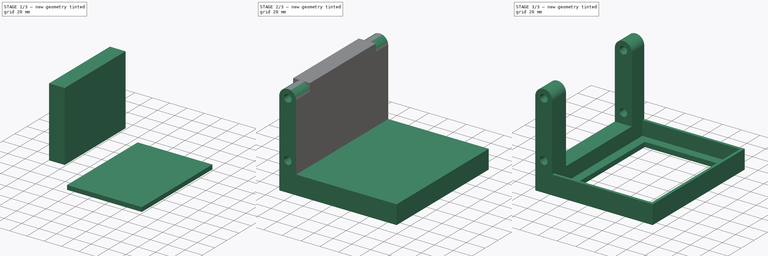
[diagram: build sequence overview — one tinted view per stage of 3, left to right]
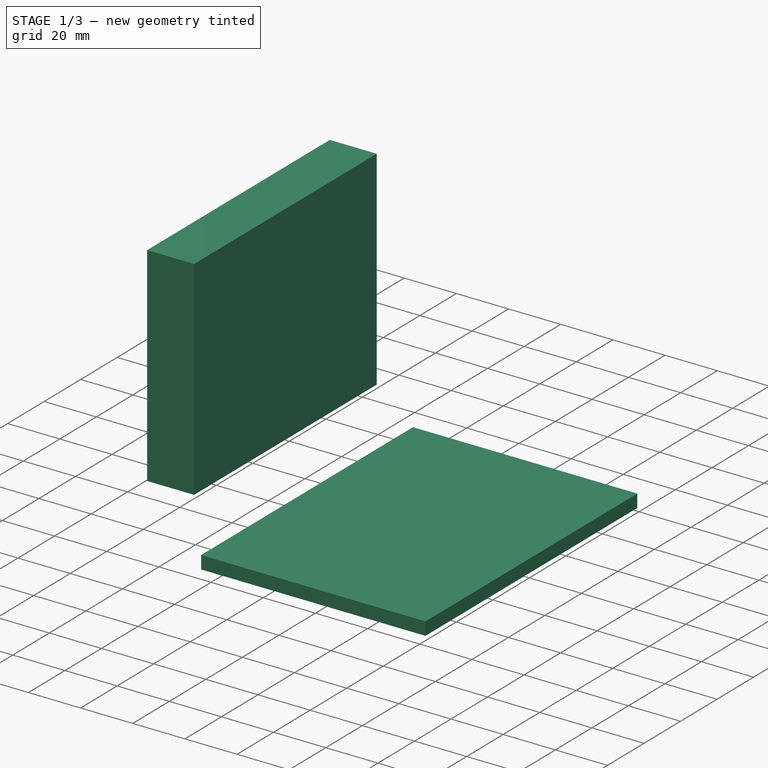
[diagram: stage 1 of 3 — iso view after this stage's code; geometry added in this stage tinted green]
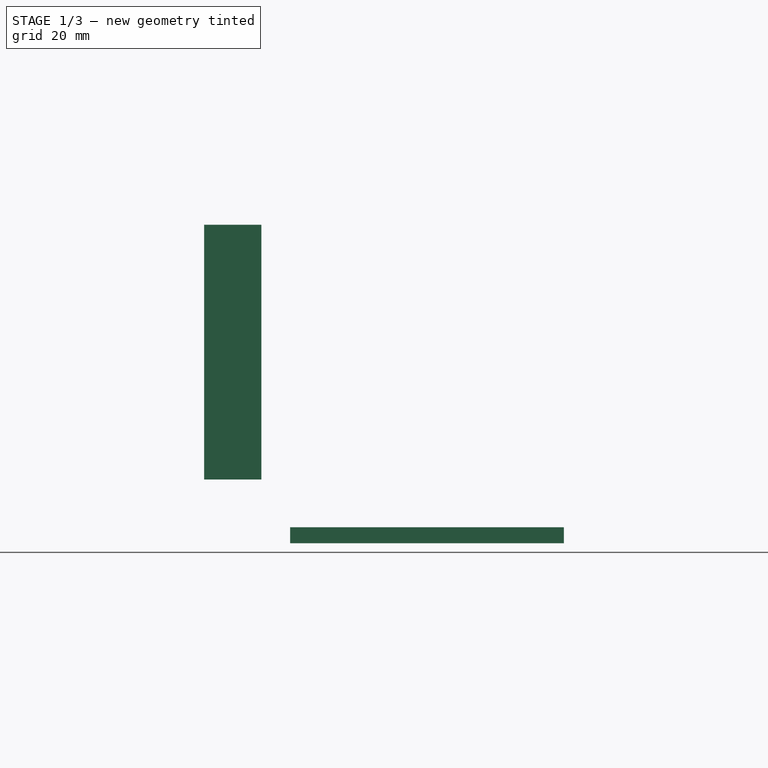
[diagram: stage 1 of 3 — front view after this stage's code; geometry added in this stage tinted green]
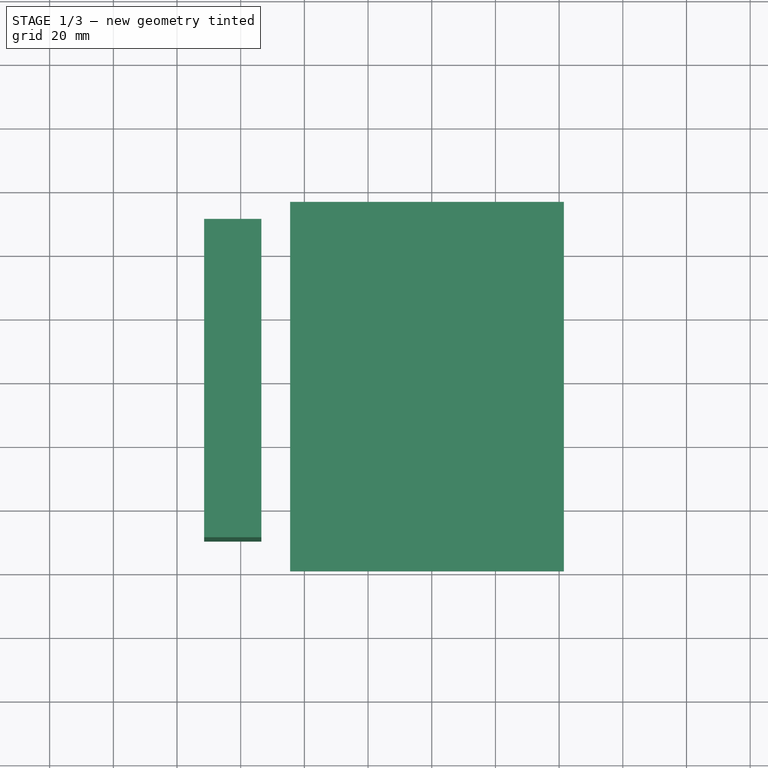
[diagram: stage 1 of 3 — top view after this stage's code; geometry added in this stage tinted green]
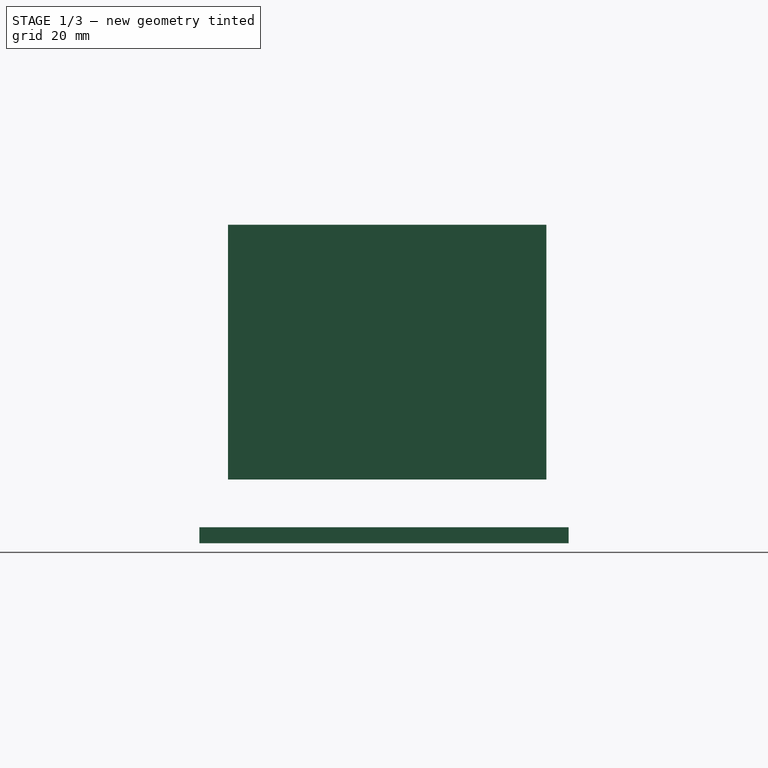
[diagram: stage 1 of 3 — right view after this stage's code; geometry added in this stage tinted green]
FCSTD DOCUMENT  (FreeCAD 0.16R6710 (Git))
Label: board_shelf
License: All rights reserved
LicenseURL: http://en.wikipedia.org/wiki/All_rights_reserved
objects: Sketcher::SketchObject×3, PartDesign::Pad×3, Part::Cut×2, Part::MultiFuse×1, Part::Box×1
note: 13 computed .brp shape members not serialized (recipe doc carries the construction recipe); baked Part::Feature solids carry a one-line shape summary decoded from their .brp

FEATURE [PartDesign::Pad] Pad002  label="BaseHole"
  Length = 5
  Length2 = 100
  Placement = pos=(0,0,5) rot=(0,0,1;0rad)
  Reversed = true
  Sketch = -> Sketch002
  Type = 0
FEATURE [Part::Box] Box  label="Cube"
  Height = 80
  Length = 18
  Placement = pos=(-91.5,-50,20) rot=(0,0,1;0rad)
  Width = 100
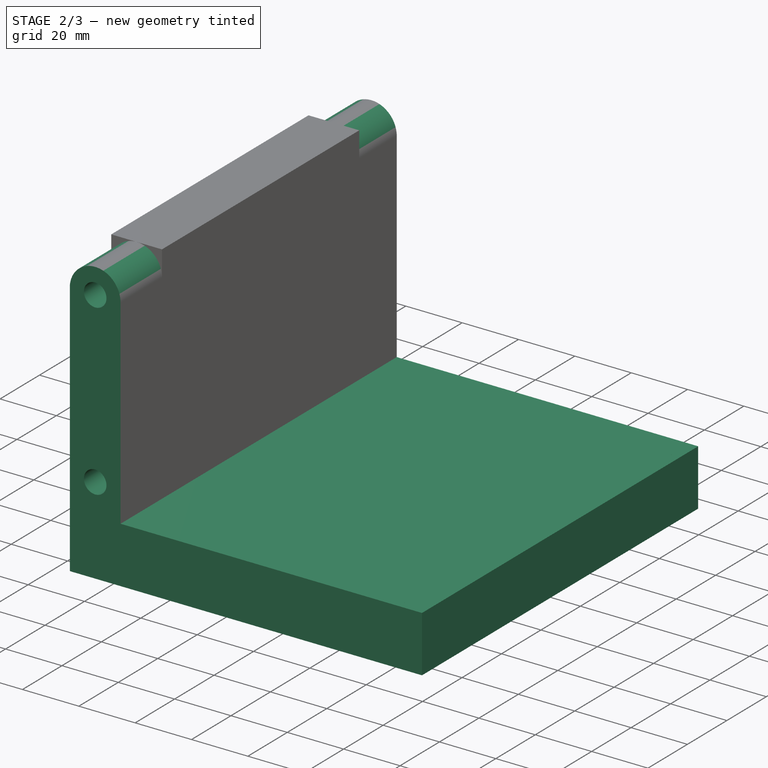
[diagram: stage 2 of 3 — iso view after this stage's code; geometry added in this stage tinted green]
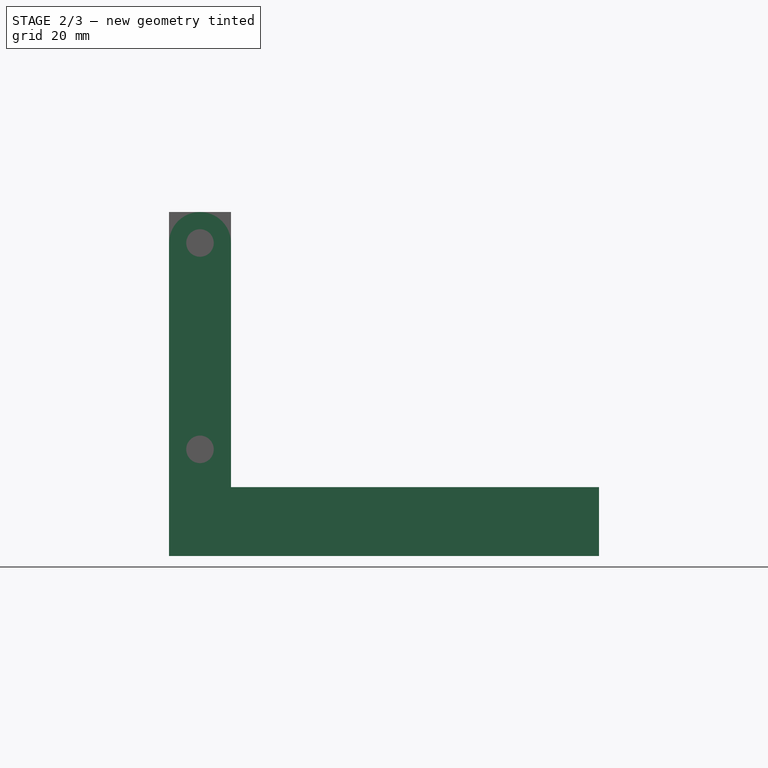
[diagram: stage 2 of 3 — front view after this stage's code; geometry added in this stage tinted green]
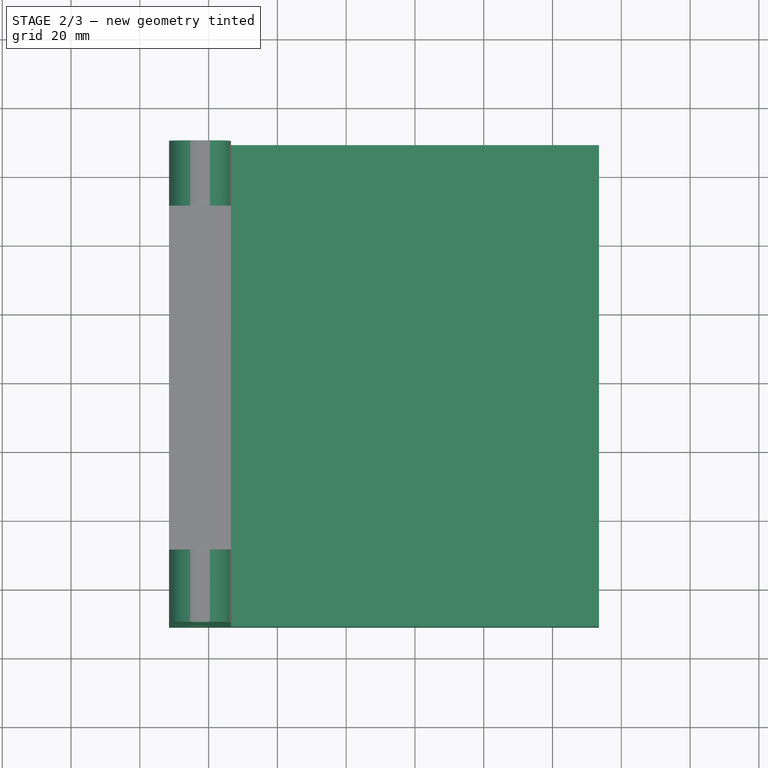
[diagram: stage 2 of 3 — top view after this stage's code; geometry added in this stage tinted green]
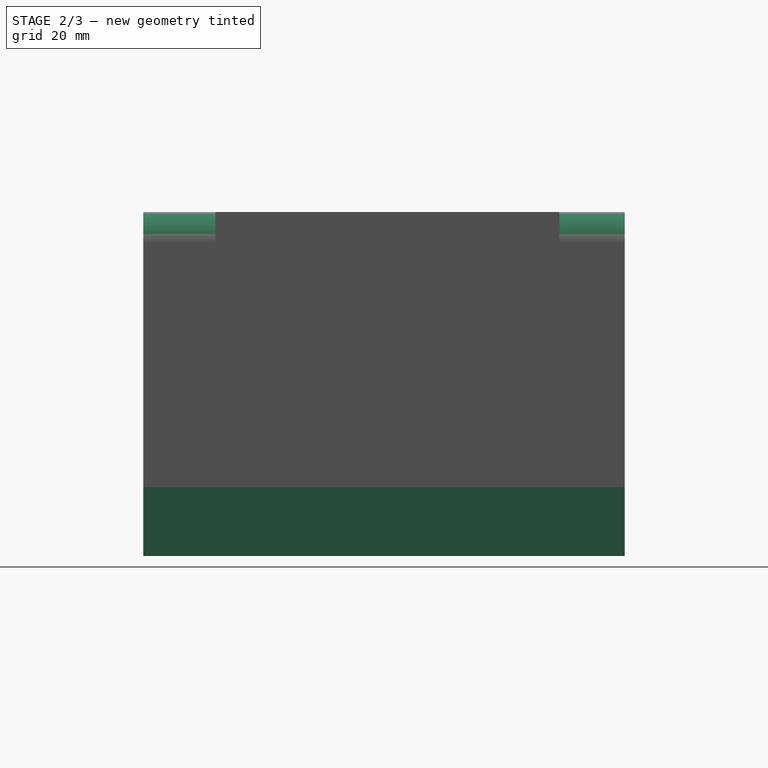
[diagram: stage 2 of 3 — right view after this stage's code; geometry added in this stage tinted green]
FEATURE [Sketcher::SketchObject] Sketch
  Placement = pos=(0,-71,20) rot=(1,0,0;1.5708rad)
  sketch-geometry (8):
    g0: LineSegment StartX=-91.5 StartY=-20 StartZ=0 EndX=-91.5 EndY=71 EndZ=0
    g1: LineSegment StartX=-91.5 StartY=-20 StartZ=0 EndX=33.5 EndY=-20 EndZ=0
    g2: LineSegment StartX=33.5 StartY=-20 StartZ=0 EndX=33.5 EndY=0 EndZ=0
    g3: LineSegment StartX=33.5 StartY=0 StartZ=0 EndX=-73.5 EndY=0 EndZ=0
    g4: LineSegment StartX=-73.5 StartY=0 StartZ=0 EndX=-73.5 EndY=71 EndZ=0
    g5: ArcOfCircle CenterX=-82.5 CenterY=71 CenterZ=0 NormalX=0 NormalY=0 NormalZ=1 Radius=9 StartAngle=5.9021e-08 EndAngle=3.14159
    g6: Circle CenterX=-82.5 CenterY=71 CenterZ=0 NormalX=0 NormalY=0 NormalZ=1 Radius=4
    g7: Circle CenterX=-82.5 CenterY=11 CenterZ=0 NormalX=0 NormalY=0 NormalZ=1 Radius=4
  constraints (24):
    c: Vertical(g0)
    c: Coincident(g1,g0)
    c: Horizontal(g1)
    c: PointOnObject(g2,g-1)
    c: Vertical(g2)
    c: Coincident(g3,g2)
    c: PointOnObject(g3,g-1)
    c: Vertical(g4)
    c: Coincident(g5,g4)
    c: Coincident(g5,g0)
    c: Tangent(g0,g5)
    c: Tangent(g5,g4)
    c: Coincident(g6,g5)
    c: Radius(g6) = 4
    c: DistanceY(g7,g5) = 60
    c: Radius(g7) = 4
    c: DistanceX(g0,g4) = 18
    c: DistanceY(g0,g5) = 91
    c: DistanceX(g0,g7) = 9
    c: DistanceX(g0,g2) = 125
    c: Coincident(g4,g3)
    c: Coincident(g1,g2)
    c: DistanceY(g1,g-1) = 20
    c: DistanceX(g3,g-1) = 73.5
FEATURE [PartDesign::Pad] Pad001  label="BaseBlock"
  Length = 140
  Length2 = 100
  Placement = pos=(0,-71,20) rot=(1,0,0;1.5708rad)
  Reversed = true
  Sketch = -> Sketch
  Type = 0
FEATURE [Sketcher::SketchObject] Sketch001
  Placement = pos=(0,0,20) rot=(0,0,1;0rad)
  sketch-geometry (5):
    g0: LineSegment StartX=-73.5 StartY=66 StartZ=0 EndX=30.5 EndY=66 EndZ=0
    g1: LineSegment StartX=30.5 StartY=66 StartZ=0 EndX=30.5 EndY=-68 EndZ=0
    g2: LineSegment StartX=30.5 StartY=-68 StartZ=0 EndX=-73.5 EndY=-68 EndZ=0
    g3: LineSegment StartX=-73.5 StartY=-68 StartZ=0 EndX=-73.5 EndY=66 EndZ=0
    g4: LineSegment [constr] StartX=-73.5 StartY=-71 StartZ=0 EndX=33.5 EndY=-71 EndZ=0
  constraints (16):
    c: Coincident(g0,g1)
    c: Coincident(g1,g2)
    c: Coincident(g2,g3)
    c: Coincident(g3,g0)
    c: Horizontal(g0)
    c: Horizontal(g2)
    c: Vertical(g1)
    c: Vertical(g3)
    c: Horizontal(g4)
    c: DistanceY(g4,g-1) = 71
    c: DistanceX(g-1,g4) = 33.5
    c: DistanceY(g1,g1) = 134
    c: DistanceY(g4,g1) = 3
    c: DistanceX(g1,g4) = 3
    c: DistanceX(g4,g4) = 107
    c: DistanceX(g4,g2) = 0
FEATURE [Sketcher::SketchObject] Sketch002
  Placement = pos=(0,0,5) rot=(0,0,1;0rad)
  sketch-geometry (5):
    g0: LineSegment StartX=-64.5 StartY=57 StartZ=0 EndX=21.5 EndY=57 EndZ=0
    g1: LineSegment StartX=21.5 StartY=57 StartZ=0 EndX=21.5 EndY=-59 EndZ=0
    g2: LineSegment StartX=21.5 StartY=-59 StartZ=0 EndX=-64.5 EndY=-59 EndZ=0
    g3: LineSegment StartX=-64.5 StartY=-59 StartZ=0 EndX=-64.5 EndY=57 EndZ=0
    g4: LineSegment [constr] StartX=-73.5 StartY=-71 StartZ=0 EndX=33.5 EndY=-71 EndZ=0
  constraints (16):
    c: Coincident(g0,g1)
    c: Coincident(g2,g3)
    c: Coincident(g3,g0)
    c: Horizontal(g0)
    c: Horizontal(g2)
    c: Vertical(g1)
    c: Vertical(g3)
    c: Horizontal(g4)
    c: DistanceY(g4,g-1) = 71
    c: DistanceY(g4,g1) = 12
    c: DistanceY(g1,g0) = 116
    c: DistanceX(g4,g4) = 107
    c: DistanceX(g4,g2) = 9
    c: DistanceX(g4,g1) = 95
    c: Coincident(g2,g1)
    c: DistanceX(g4,g-1) = 73.5
FEATURE [PartDesign::Pad] Pad  label="BaseFrame"
  Length = 15
  Length2 = 100
  Placement = pos=(0,0,20) rot=(0,0,1;0rad)
  Reversed = true
  Sketch = -> Sketch001
  Type = 0
FEATURE [Part::MultiFuse] Fusion  label="CutBlock"
  Shapes = -> [Pad002,Pad]
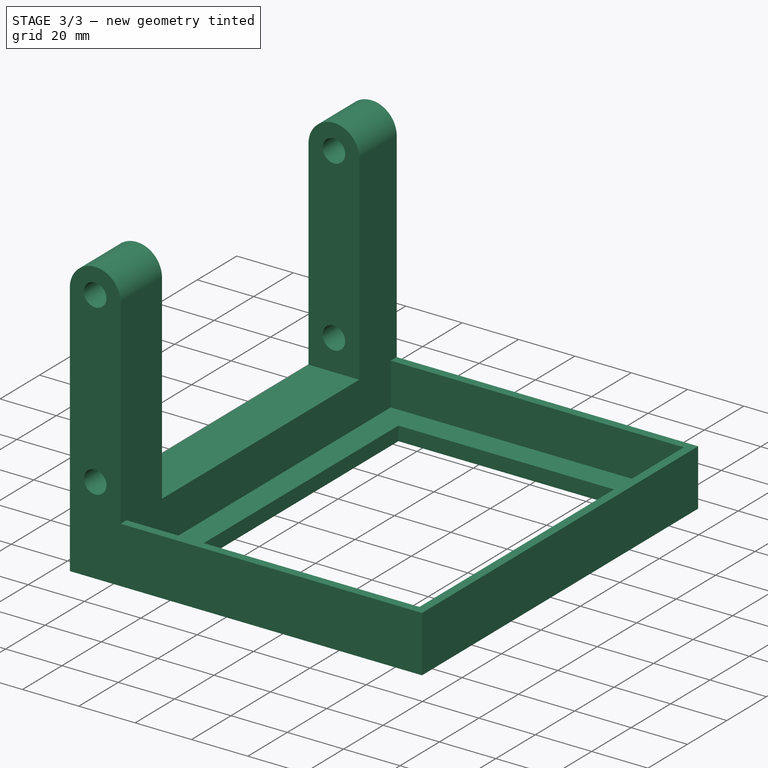
[diagram: stage 3 of 3 — iso view after this stage's code; geometry added in this stage tinted green]
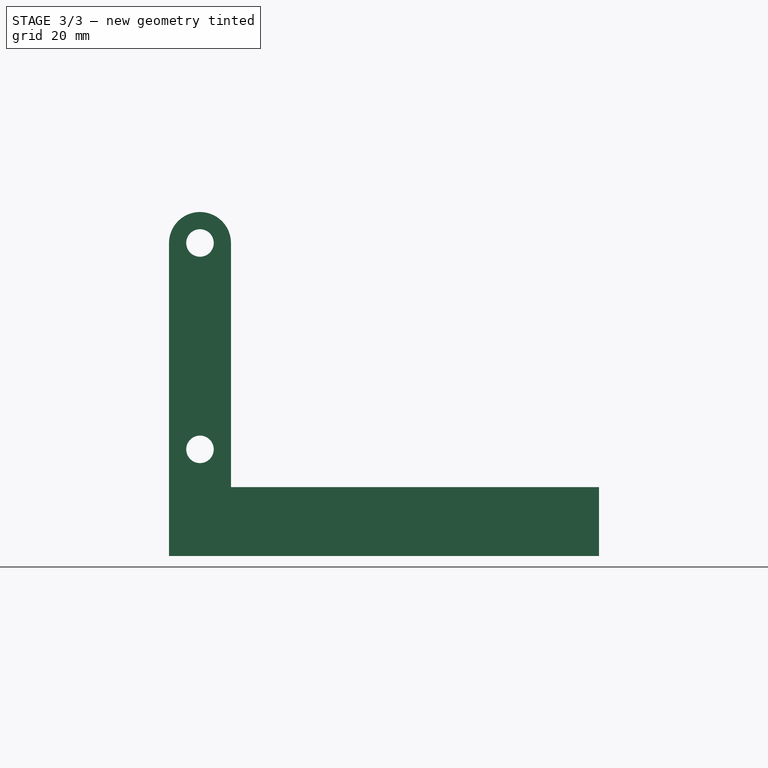
[diagram: stage 3 of 3 — front view after this stage's code; geometry added in this stage tinted green]
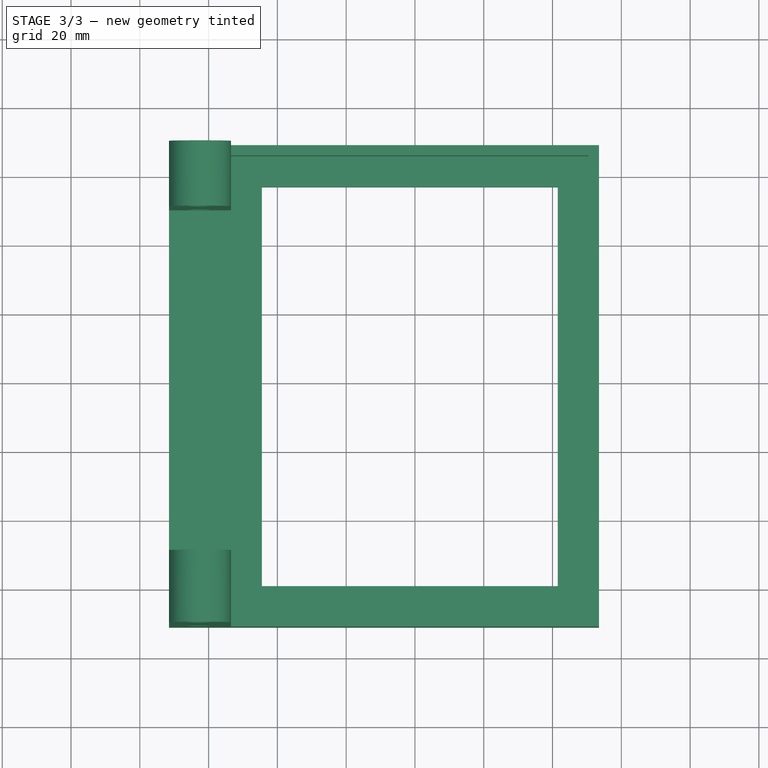
[diagram: stage 3 of 3 — top view after this stage's code; geometry added in this stage tinted green]
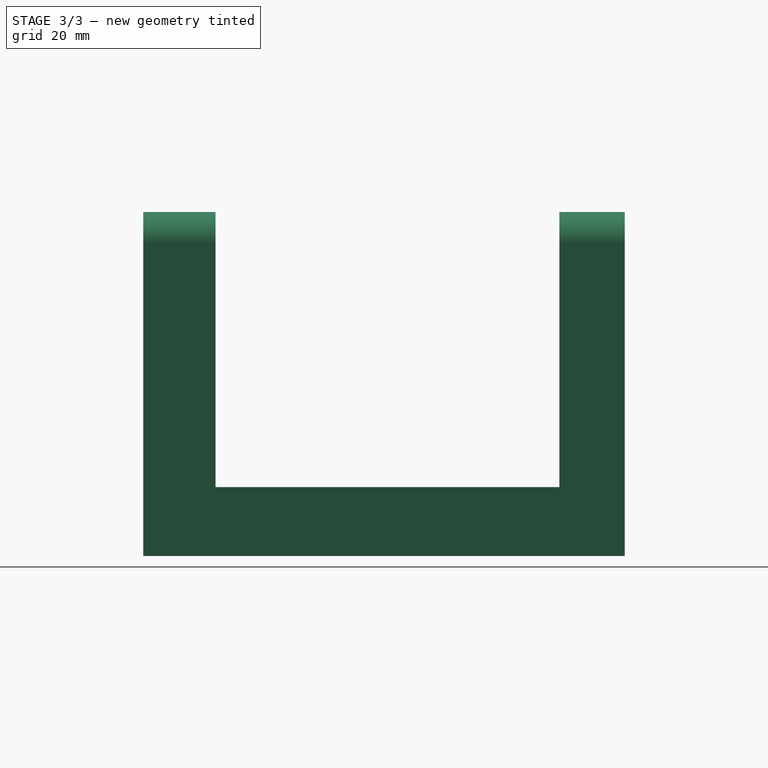
[diagram: stage 3 of 3 — right view after this stage's code; geometry added in this stage tinted green]
FEATURE [Part::Cut] Cut
  Base = -> Pad001
  Tool = -> Fusion
FEATURE [Part::Cut] Cut001
  Base = -> Cut
  Tool = -> Box
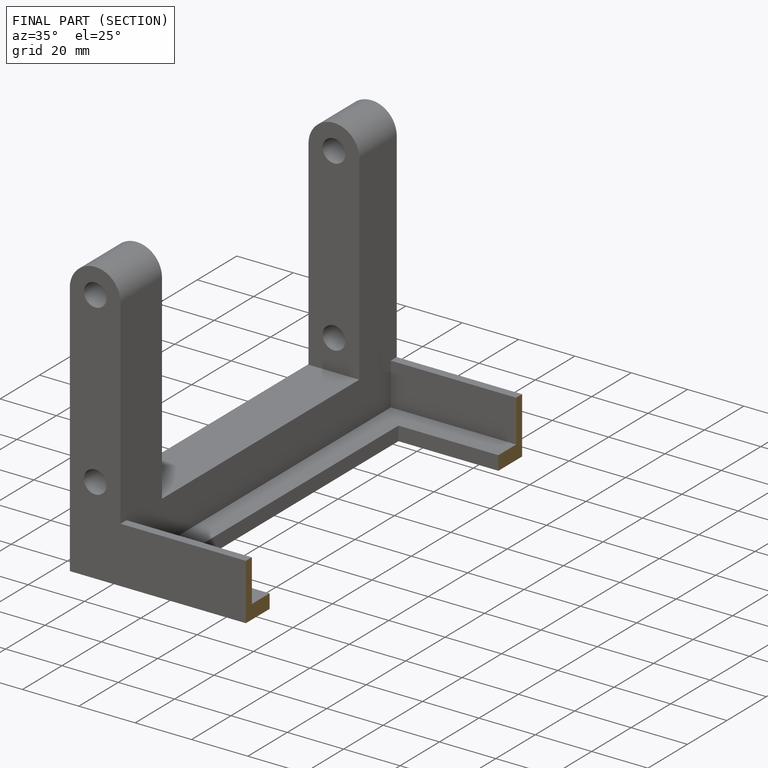
[diagram: finished part — half-section view (interior)]
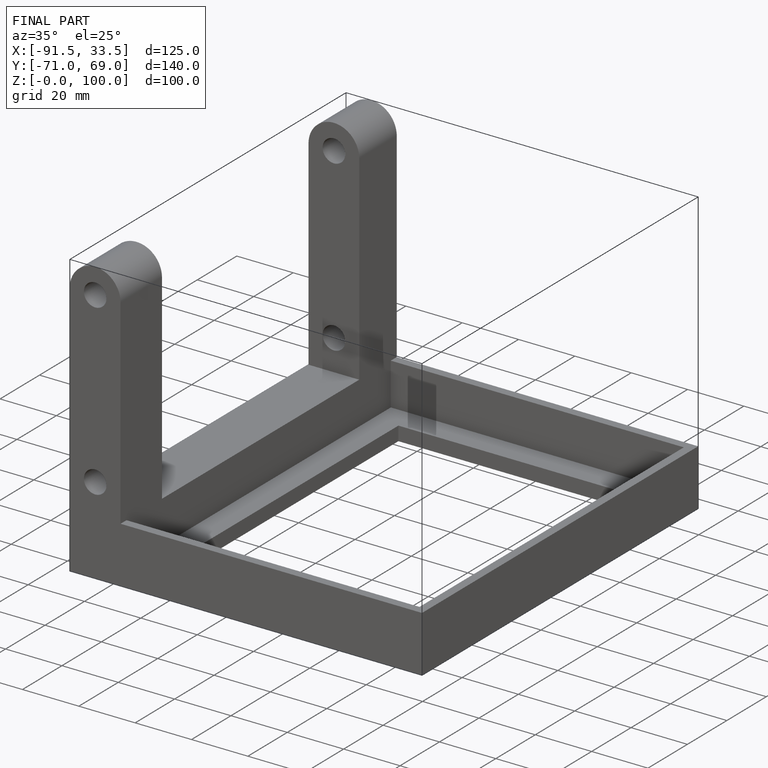
[diagram: finished part — iso view with bounding-box wireframe]
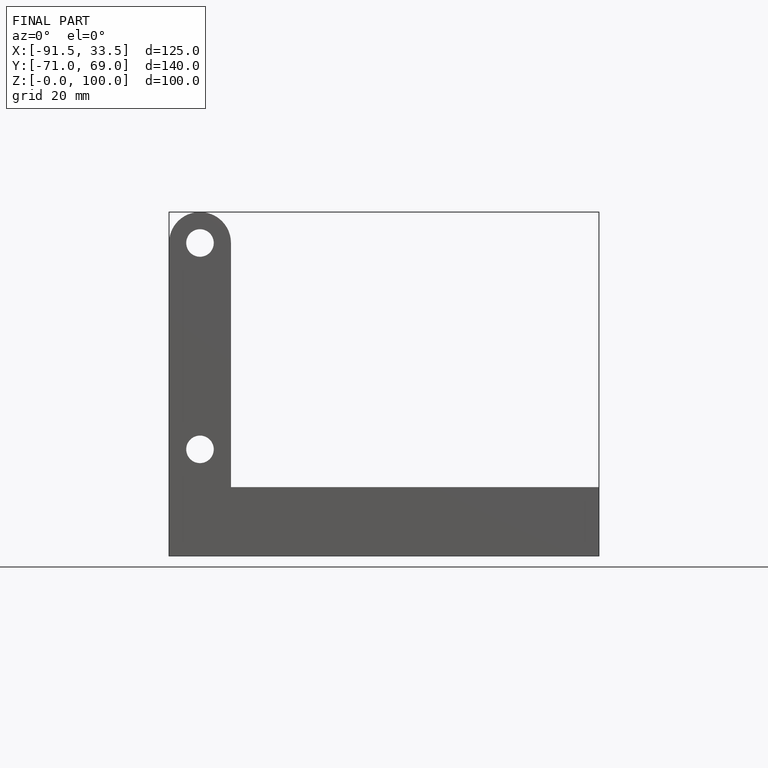
[diagram: finished part — front view with bounding-box wireframe]
